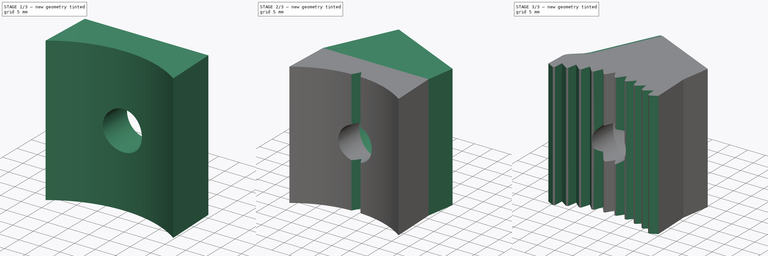
[diagram: build sequence overview — one tinted view per stage of 3, left to right]
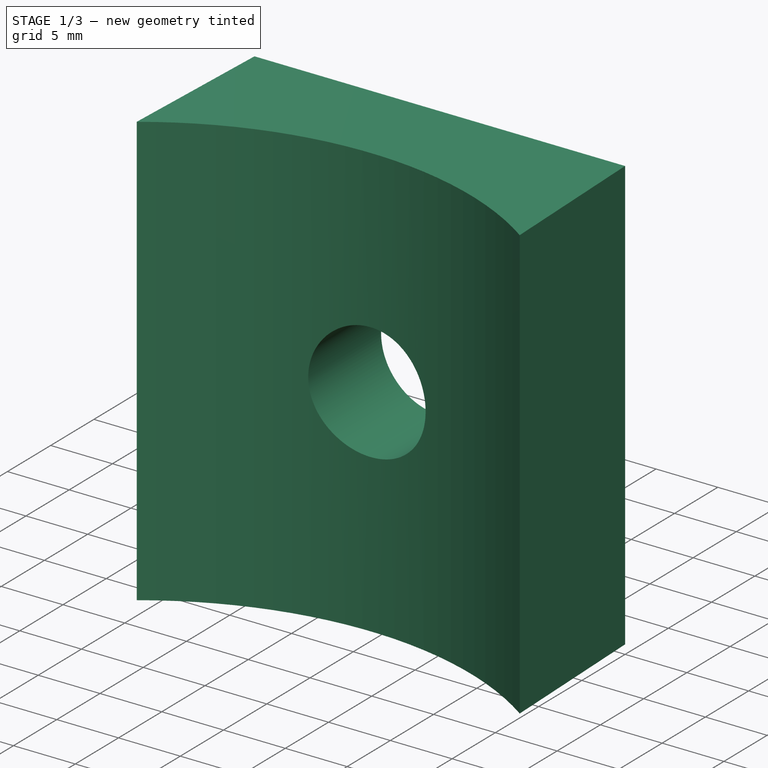
[diagram: stage 1 of 3 — iso view after this stage's code; geometry added in this stage tinted green]
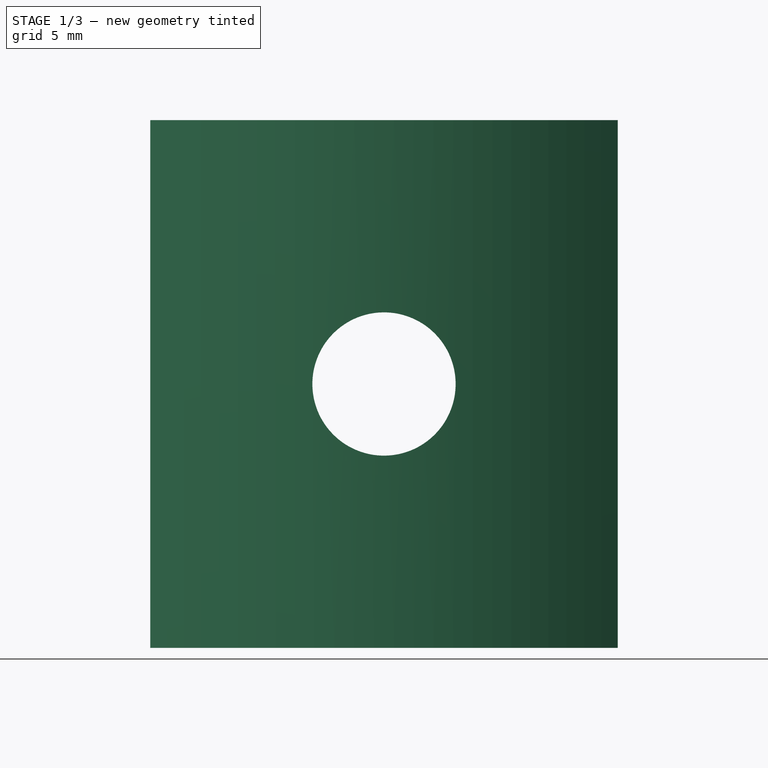
[diagram: stage 1 of 3 — front view after this stage's code; geometry added in this stage tinted green]
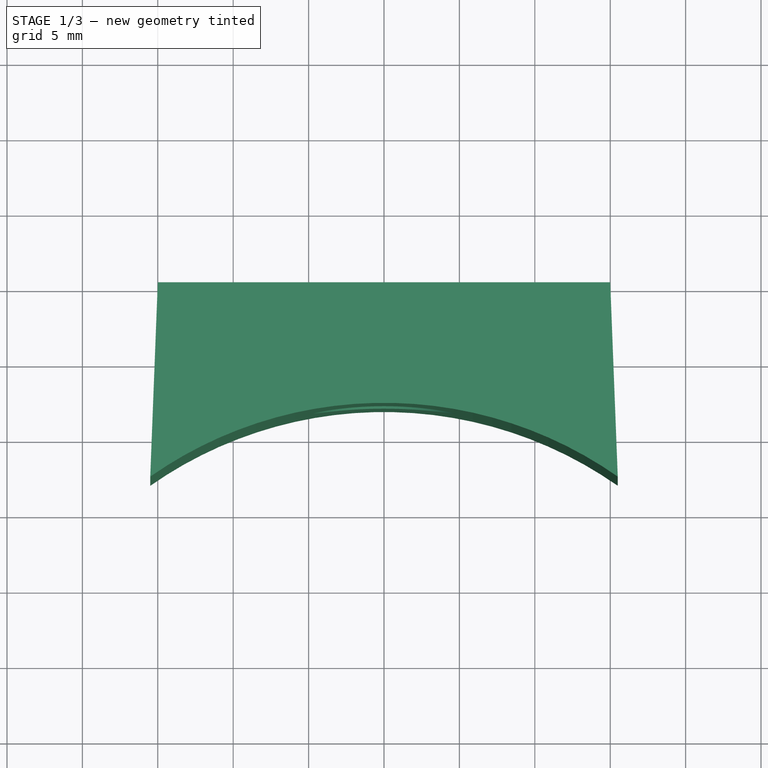
[diagram: stage 1 of 3 — top view after this stage's code; geometry added in this stage tinted green]
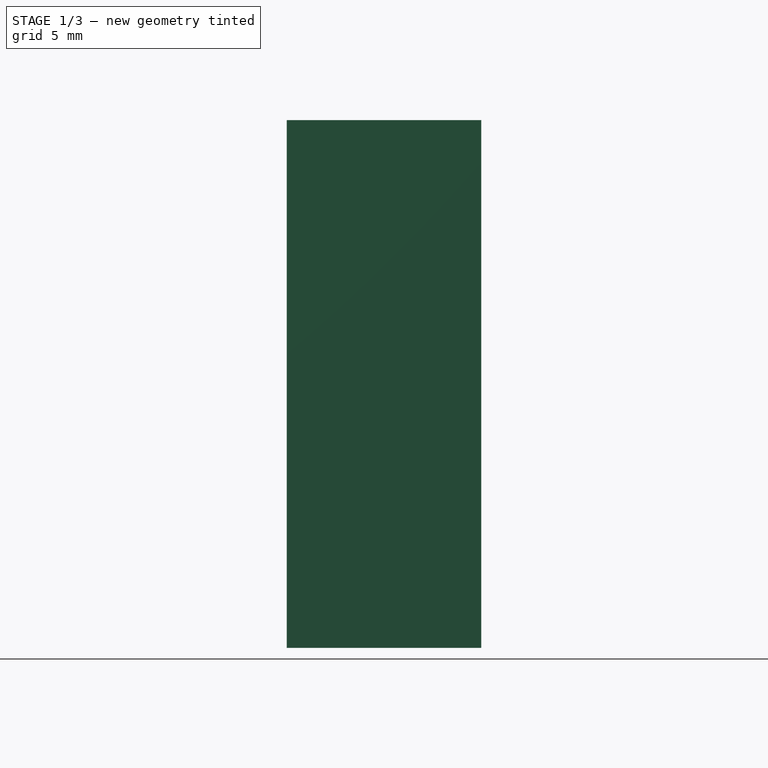
[diagram: stage 1 of 3 — right view after this stage's code; geometry added in this stage tinted green]
FCSTD DOCUMENT  (FreeCAD 0.19R)
Label: PivotalTest25.3
License: All rights reserved
LicenseURL: http://en.wikipedia.org/wiki/All_rights_reserved
objects: Sketcher::SketchObject×5, PartDesign::Pocket×3, PartDesign::Pad×2, PartDesign::PolarPattern×1, PartDesign::Fillet×1, PartDesign::Body×1
note: 19 computed .brp shape members not serialized (recipe doc carries the construction recipe); baked Part::Feature solids carry a one-line shape summary decoded from their .brp

FEATURE [Sketcher::SketchObject] Sketch
  FullyConstrained = false
  MapMode = 5
  Support = -> [XY_Plane]
  sketch-geometry (4):
    g0: ArcOfCircle CenterX=0 CenterY=0 CenterZ=0 NormalX=0 NormalY=0 NormalZ=1 AngleXU=0 Radius=27 StartAngle=0.959323 EndAngle=2.18227
    g1: LineSegment StartX=-15.5 StartY=22.1077 StartZ=0 EndX=-15 EndY=35 EndZ=0
    g2: LineSegment StartX=-15 StartY=35 StartZ=0 EndX=15 EndY=35 EndZ=0
    g3: LineSegment StartX=15 StartY=35 StartZ=0 EndX=15.5 EndY=22.1077 EndZ=0
  constraints (10):
    c: Radius(g0) = 27
    c: Coincident(g-1,g0)
    c: Coincident(g0,g1)
    c: Coincident(g1,g2)
    c: Coincident(g2,g3)
    c: Coincident(g3,g0)
    c: DistanceY(g2) = 35
    c: Distance(g2) = 30
    c: Distance(g0,g0) = 31
    c: Symmetric(g2,g1,g-2)
FEATURE [PartDesign::Pad] Pad
  Direction = (1,1,1)
  Length = 35
  Length2 = 100
  Profile = -> Sketch
  Type = 0
FEATURE [Sketcher::SketchObject] Sketch003
  FullyConstrained = true
  MapMode = 5
  Placement = pos=(0,35,0) rot=(0,0.707107,0.707107;3.14159rad)
  Support = -> [Pad]
  sketch-geometry (1):
    g0: Circle CenterX=0 CenterY=17.5 CenterZ=0 NormalX=0 NormalY=0 NormalZ=1 AngleXU=0 Radius=4.75
  constraints (3):
    c: PointOnObject(g0,g-2)
    c: DistanceY(g0) = 17.5
    c: Diameter(g0) = 9.5
FEATURE [PartDesign::Pocket] Pocket
  BaseFeature = -> Pad
  Length = 5
  Length2 = 100
  Profile = -> Sketch003
  Type = 1
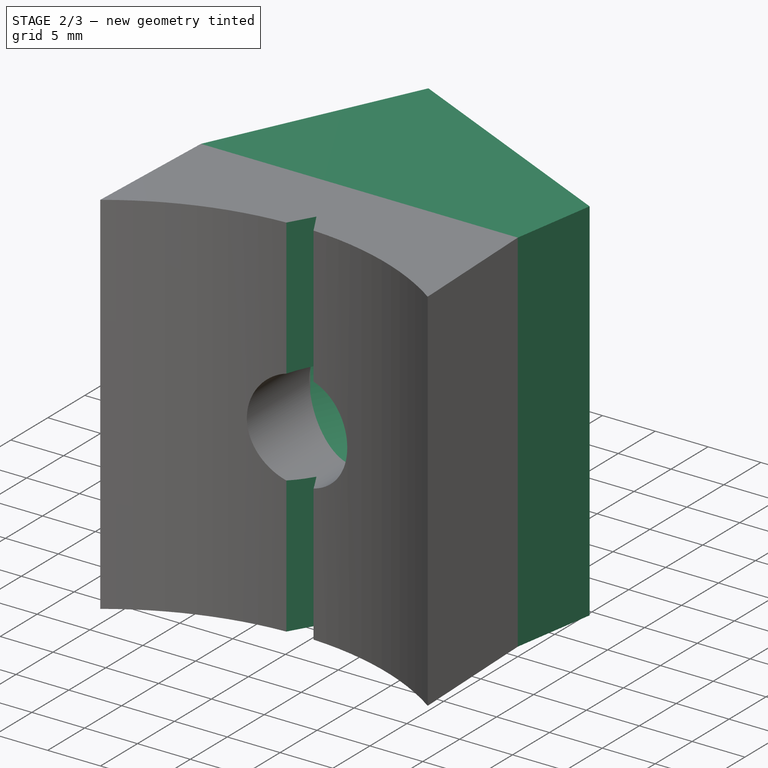
[diagram: stage 2 of 3 — iso view after this stage's code; geometry added in this stage tinted green]
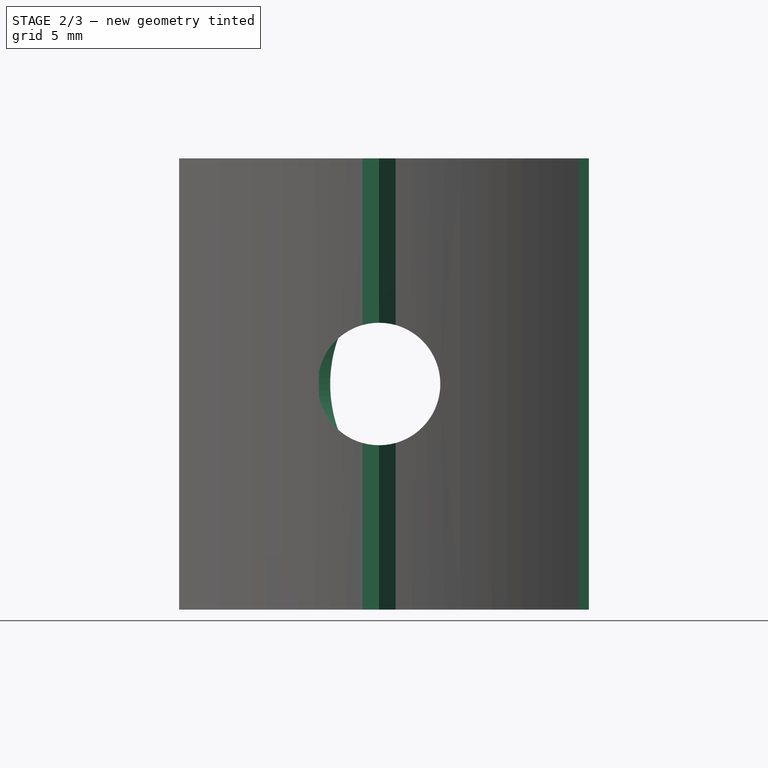
[diagram: stage 2 of 3 — front view after this stage's code; geometry added in this stage tinted green]
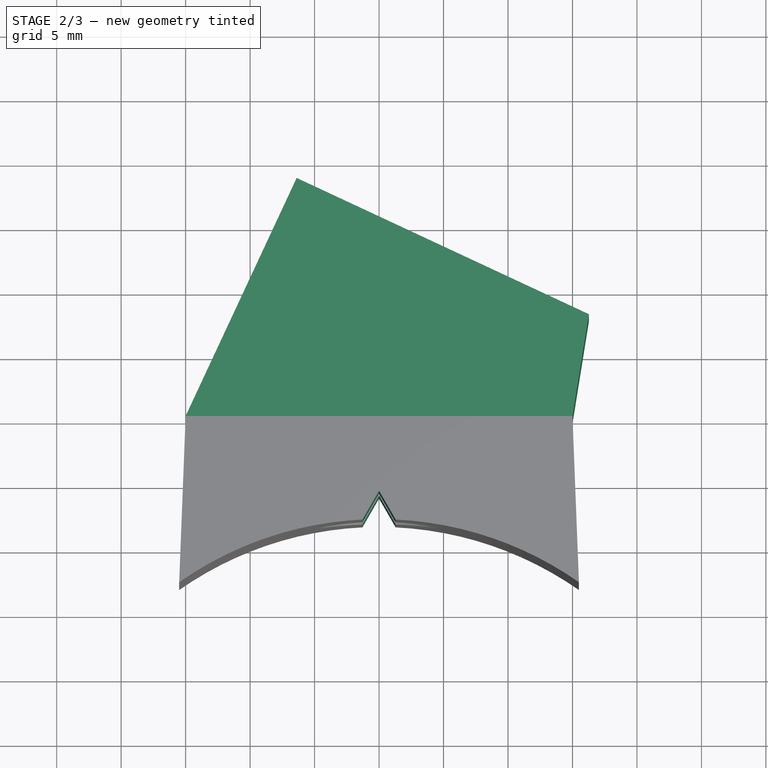
[diagram: stage 2 of 3 — top view after this stage's code; geometry added in this stage tinted green]
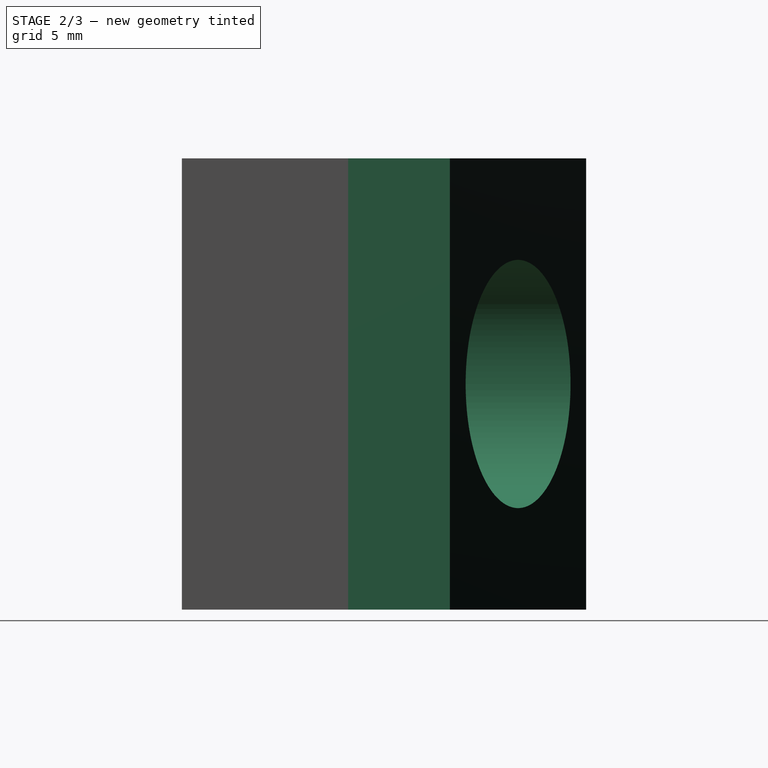
[diagram: stage 2 of 3 — right view after this stage's code; geometry added in this stage tinted green]
FEATURE [Sketcher::SketchObject] Sketch004
  ExternalGeometry = -> [Pocket]
  FullyConstrained = true
  MapMode = 5
  Placement = pos=(0,0,0) rot=(1,0,0;3.14159rad)
  Support = -> [Pocket]
  sketch-geometry (4):
    g0: LineSegment StartX=-15 StartY=-35 StartZ=0 EndX=-6.38993 EndY=-53.4644 EndZ=0
    g1: LineSegment StartX=-6.38993 StartY=-53.4644 StartZ=0 EndX=16.2678 EndY=-42.8989 EndZ=0
    g2: LineSegment StartX=16.2678 StartY=-42.8989 StartZ=0 EndX=15 EndY=-35 EndZ=0
    g3: LineSegment StartX=15 StartY=-35 StartZ=0 EndX=-15 EndY=-35 EndZ=0
  constraints (10):
    c: Coincident(g0,g1)
    c: Coincident(g1,g2)
    c: Coincident(g2,g3)
    c: Coincident(g3,g0)
    c: Perpendicular(g0,g1)
    c: Angle(g0) = -1.13446
    c: Distance(g1) = 25
    c: Coincident(g0,g-3)
    c: Coincident(g2,g-3)
    c: Distance(g2) = 8
FEATURE [PartDesign::Pad] Pad001
  BaseFeature = -> Pocket
  Direction = (1,1,1)
  Length = 35
  Length2 = 100
  Profile = -> Sketch004
  Reversed = true
  Type = 0
FEATURE [Sketcher::SketchObject] Sketch005
  FullyConstrained = false
  MapMode = 5
  Placement = pos=(19.3368,41.4678,0) rot=(0.15487,0.698575,0.698575;2.83429rad)
  Support = -> [Pad001]
  sketch-geometry (1):
    g0: Circle CenterX=15.8923 CenterY=17.5 CenterZ=0 NormalX=0 NormalY=0 NormalZ=1 AngleXU=0 Radius=9.625
  constraints (2):
    c: DistanceY(g0) = 17.5
    c: Diameter(g0) = 19.25
FEATURE [PartDesign::Pocket] Pocket001
  BaseFeature = -> Pad001
  Length = 16
  Length2 = 100
  Profile = -> Sketch005
  Type = 0
FEATURE [Sketcher::SketchObject] Sketch001
  FullyConstrained = true
  MapMode = 5
  Placement = pos=(0,0,35) rot=(0,0,1;0rad)
  Support = -> [Pocket001]
  sketch-geometry (3):
    g0: LineSegment StartX=-7.025 StartY=17.0323 StartZ=0 EndX=0 EndY=29.2 EndZ=0
    g1: LineSegment StartX=0 StartY=29.2 StartZ=0 EndX=7.025 EndY=17.0323 EndZ=0
    g2: LineSegment StartX=7.025 StartY=17.0323 StartZ=0 EndX=-7.025 EndY=17.0323 EndZ=0
  constraints (8):
    c: PointOnObject(g0,g-2)
    c: Coincident(g0,g1)
    c: Coincident(g1,g2)
    c: Coincident(g2,g0)
    c: Symmetric(g0,g1,g-2)
    c: DistanceY(g0) = 29.2
    c: Angle(g1,g2) = 1.0472
    c: Distance(g1) = 14.05
FEATURE [PartDesign::Pocket] Pocket002
  BaseFeature = -> Pocket001
  Length = 9
  Length2 = 100
  Profile = -> Sketch001
  Type = 1
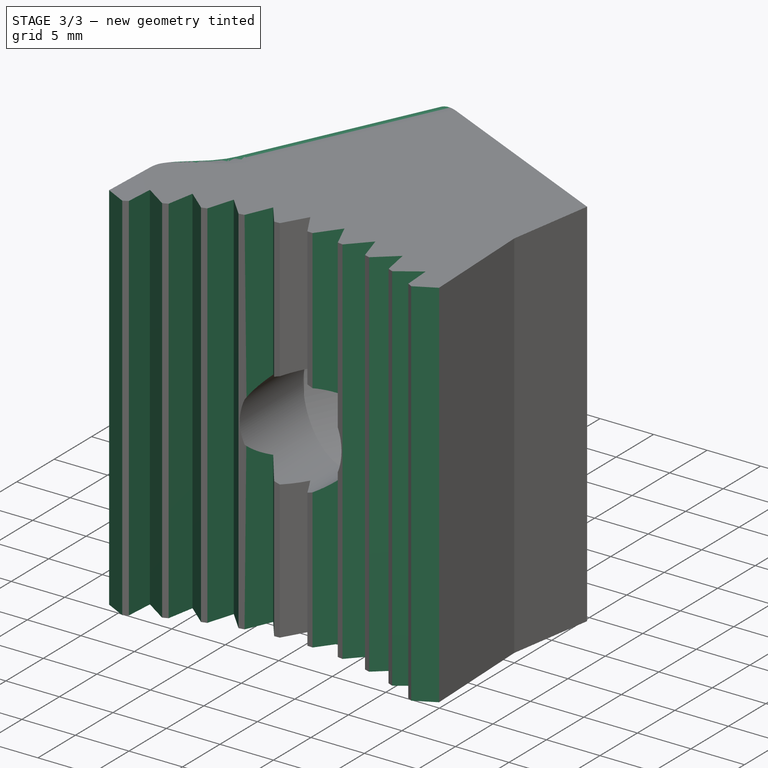
[diagram: stage 3 of 3 — iso view after this stage's code; geometry added in this stage tinted green]
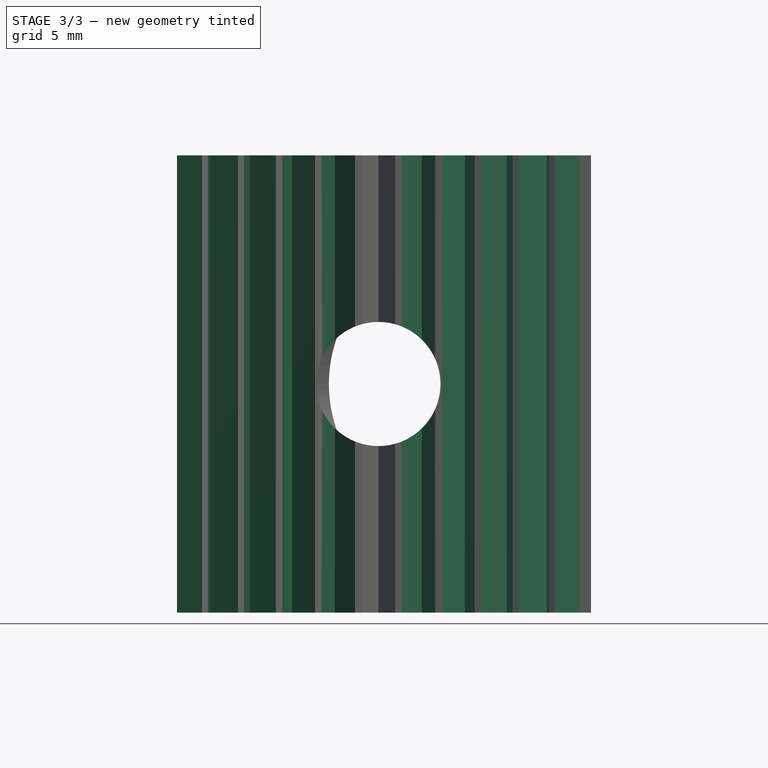
[diagram: stage 3 of 3 — front view after this stage's code; geometry added in this stage tinted green]
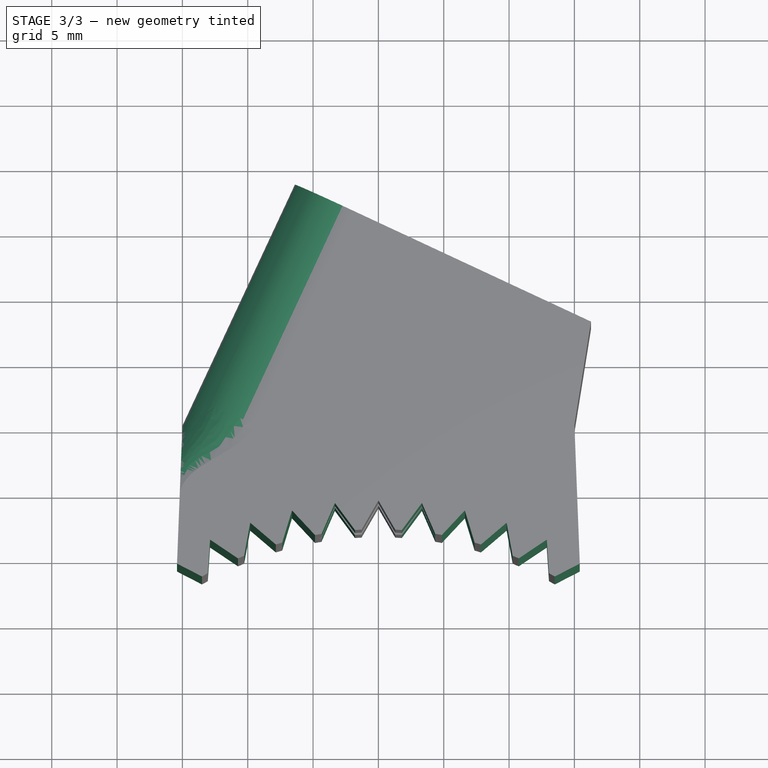
[diagram: stage 3 of 3 — top view after this stage's code; geometry added in this stage tinted green]
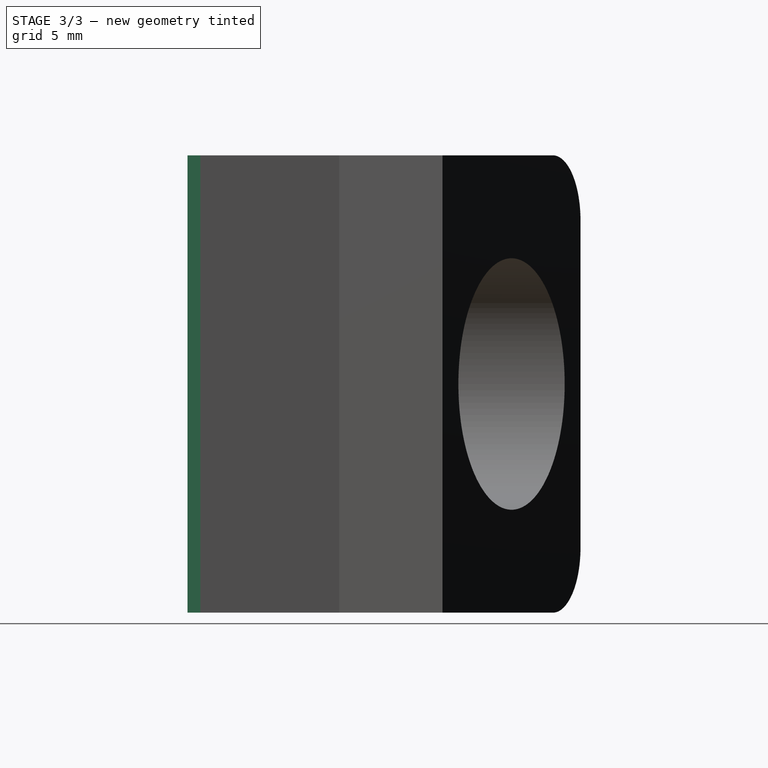
[diagram: stage 3 of 3 — right view after this stage's code; geometry added in this stage tinted green]
FEATURE [PartDesign::PolarPattern] PolarPattern
  Angle = 360
  Axis = -> Sketch001 [N_Axis]
  BaseFeature = -> Pocket002
  Occurrences = 55
  Originals = -> [Pocket002]
FEATURE [PartDesign::Fillet] Fillet
  Base = -> PolarPattern [Edge98,Edge131]
  BaseFeature = -> PolarPattern
  Radius = 5
  SupportTransform = false
FEATURE [PartDesign::Body] Body
  Group = -> [Sketch,Pad,Sketch001,Sketch003,Pocket,Sketch004,Pad001,Sketch005,Pocket001,Pocket002,PolarPattern,Fillet]
  Origin = -> Origin
  Tip = -> Fillet
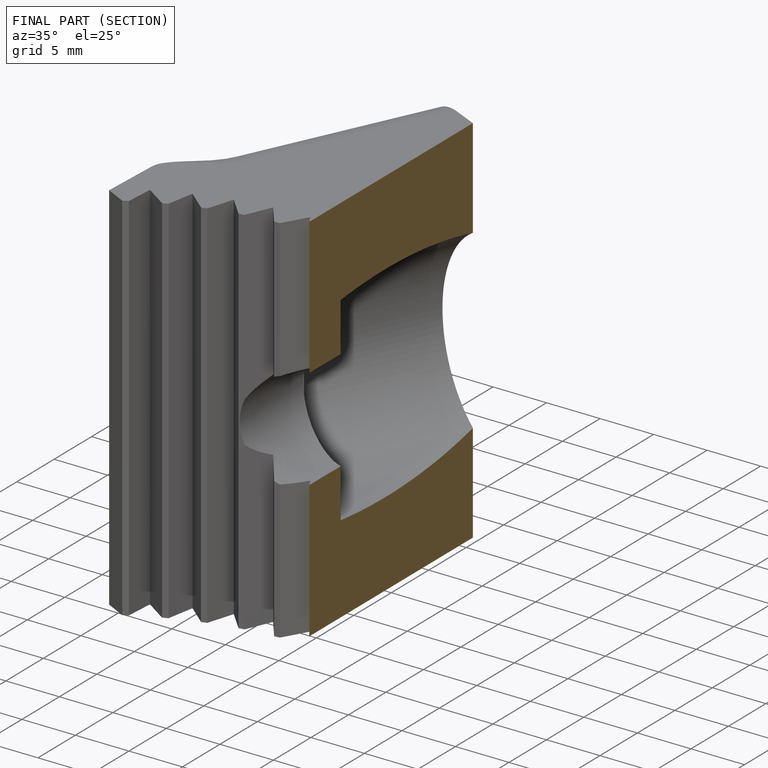
[diagram: finished part — half-section view (interior)]
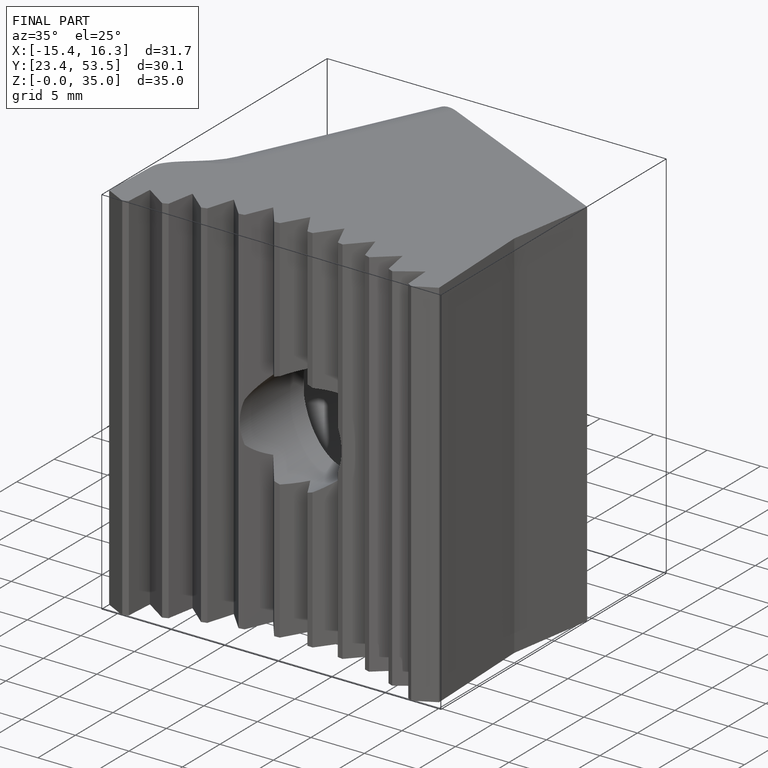
[diagram: finished part — iso view with bounding-box wireframe]
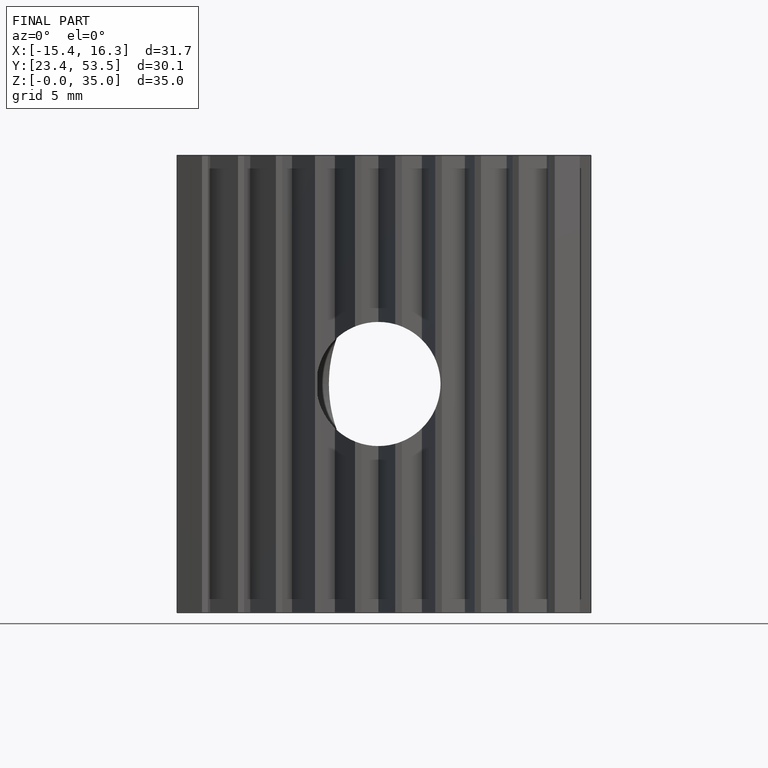
[diagram: finished part — front view with bounding-box wireframe]
